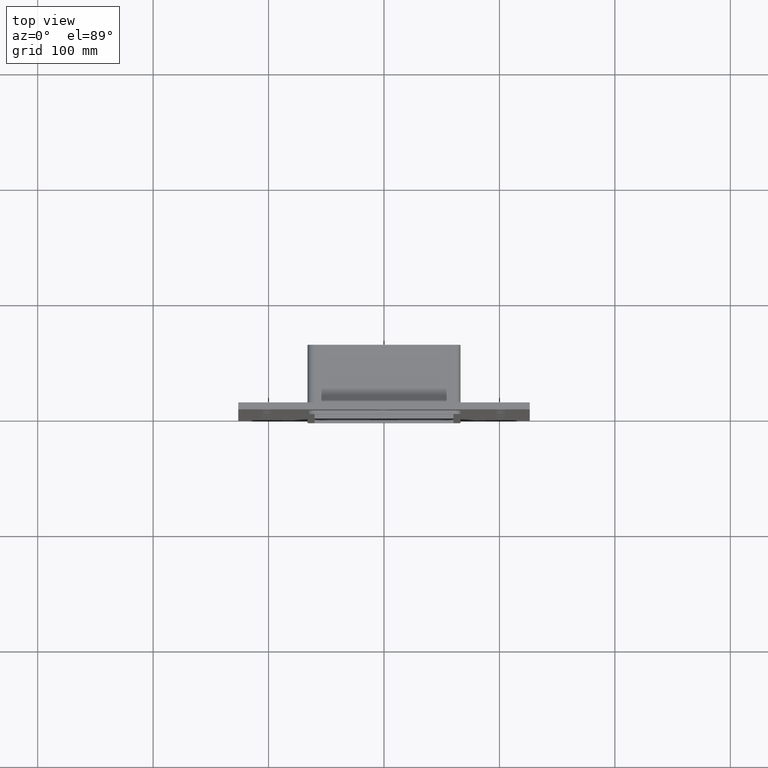
[diagram: clean part render]
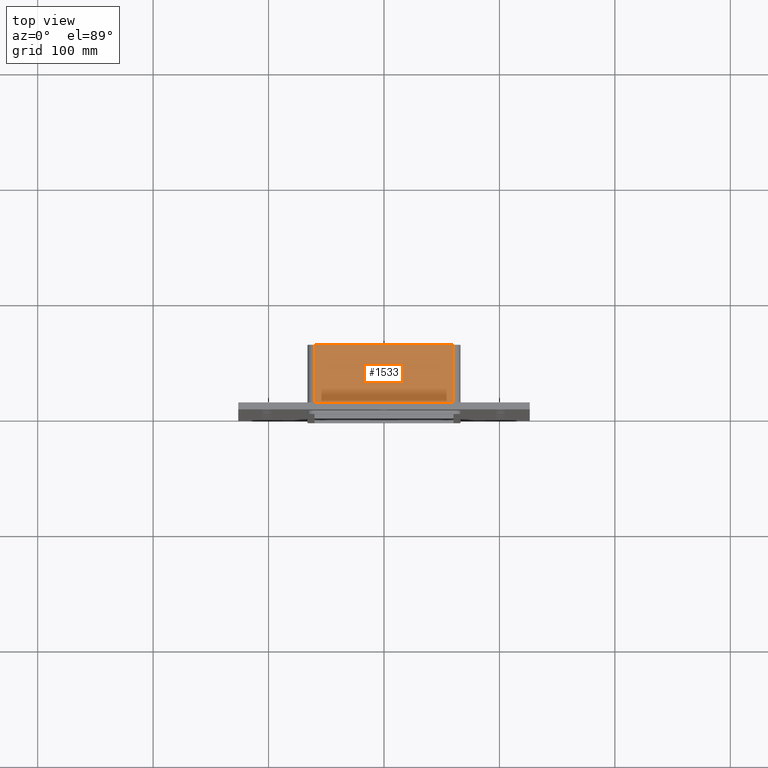
[diagram: same view with one face highlighted and labeled with its STEP entity id]
A machine part, top view. The second image highlights one B-rep face of the part: STEP entity #1533.
In plain terms, the highlighted planar face has unit normal (0, 0, 1).
Its self-contained STEP definition (entity closure, byte-faithful):
#812=CARTESIAN_POINT('',(60.25,6.000000000000001,229.0));
#813=VERTEX_POINT('',#812);
#821=CARTESIAN_POINT('',(-60.25,6.000000000000001,229.0));
#822=VERTEX_POINT('',#821);
#823=CARTESIAN_POINT('',(-60.25,6.000000000000001,229.0));
#824=DIRECTION('',(1.0,0.0,0.0));
#825=VECTOR('',#824,120.5);
#826=LINE('',#823,#825);
#827=EDGE_CURVE('',#822,#813,#826,.T.);
#1150=CARTESIAN_POINT('',(60.25,57.0,229.0));
#1151=VERTEX_POINT('',#1150);
#1159=CARTESIAN_POINT('',(60.25,57.0,229.0));
#1160=DIRECTION('',(0.0,-1.0,0.0));
#1161=VECTOR('',#1160,51.0);
#1162=LINE('',#1159,#1161);
#1163=EDGE_CURVE('',#1151,#813,#1162,.T.);
#1498=CARTESIAN_POINT('',(-60.25,57.0,229.0));
#1499=VERTEX_POINT('',#1498);
#1500=CARTESIAN_POINT('',(-60.25,6.000000000000001,229.0));
#1501=DIRECTION('',(0.0,1.0,0.0));
#1502=VECTOR('',#1501,51.0);
#1503=LINE('',#1500,#1502);
#1504=EDGE_CURVE('',#822,#1499,#1503,.T.);
#1517=CARTESIAN_POINT('',(-66.25,0.0,229.0));
#1518=DIRECTION('',(0.0,0.0,1.0));
#1519=DIRECTION('',(1.0,0.0,0.0));
#1520=AXIS2_PLACEMENT_3D('',#1517,#1518,#1519);
#1521=PLANE('',#1520);
#1522=ORIENTED_EDGE('',*,*,#827,.T.);
#1523=ORIENTED_EDGE('',*,*,#1163,.F.);
#1524=CARTESIAN_POINT('',(-60.25,57.0,229.0));
#1525=DIRECTION('',(1.0,0.0,0.0));
#1526=VECTOR('',#1525,120.5);
#1527=LINE('',#1524,#1526);
#1528=EDGE_CURVE('',#1499,#1151,#1527,.T.);
#1529=ORIENTED_EDGE('',*,*,#1528,.F.);
#1530=ORIENTED_EDGE('',*,*,#1504,.F.);
#1531=EDGE_LOOP('',(#1522,#1523,#1529,#1530));
#1532=FACE_OUTER_BOUND('',#1531,.T.);
#1533=ADVANCED_FACE('',(#1532),#1521,.T.);